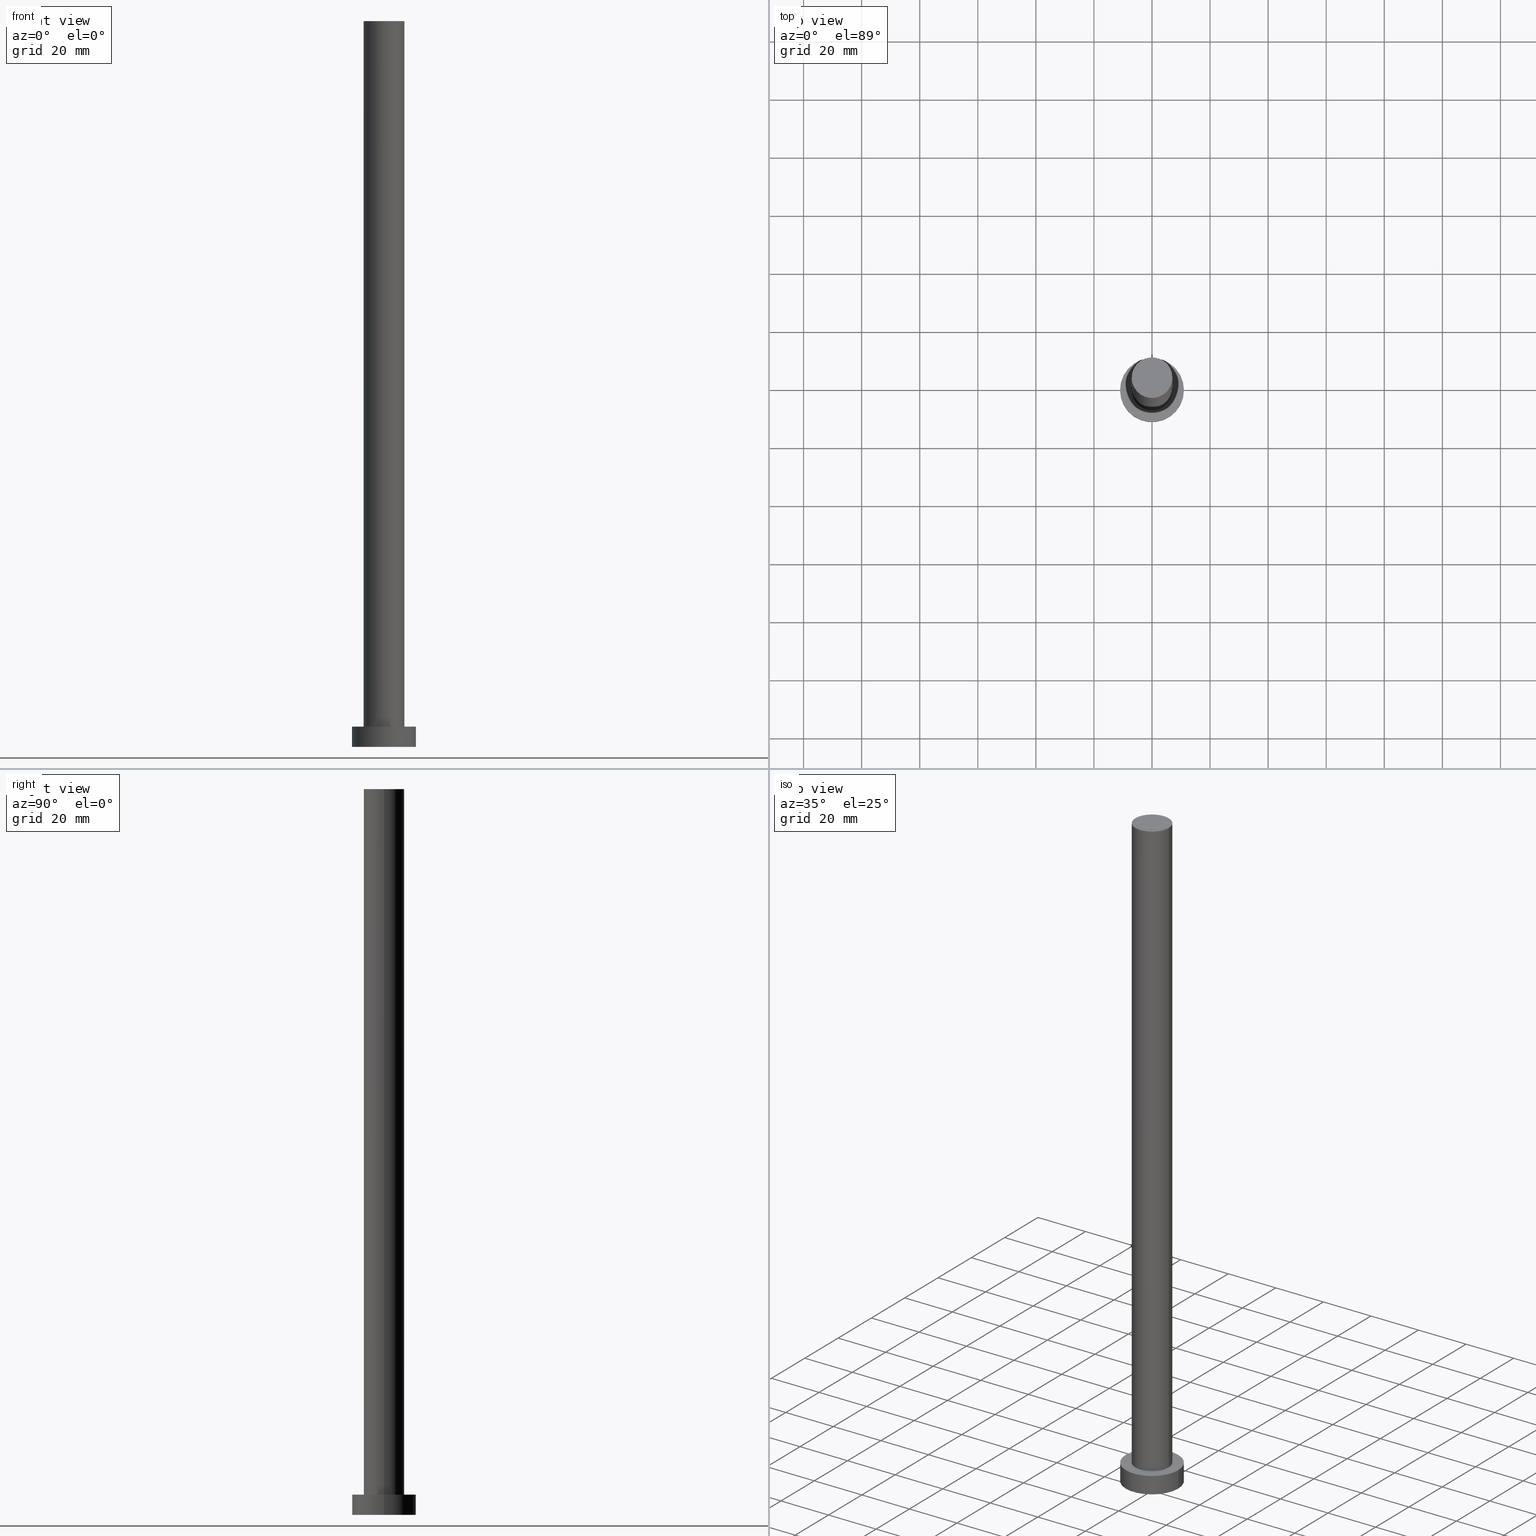
[diagram: canonical four-view strip — front | top / right | iso, engineering-drawing reading convention]
A machine part, canonical four-view strip (front | top / right | iso — engineering-drawing reading convention). The complete STEP part file that produces these views, byte-faithful:
ISO-10303-21;
HEADER;
FILE_DESCRIPTION (( 'STEP AP203' ),
    '1' );
FILE_NAME ('c078.STEP',
    '2023-02-13T08:55:01',
    ( '' ),
    ( '' ),
    'SwSTEP 2.0',
    'SolidWorks 2019',
    '' );
FILE_SCHEMA (( 'CONFIG_CONTROL_DESIGN' ));
ENDSEC;

DATA;
#1 = CC_DESIGN_PERSON_AND_ORGANIZATION_ASSIGNMENT ( #22, #135, ( #111 ) ) ;
#2 = PERSON_AND_ORGANIZATION ( #46, #154 ) ;
#3 = CARTESIAN_POINT ( 'NONE',  ( 0.000000000000000000, 0.000000000000000000, 0.000000000000000000 ) ) ;
#4 = PRODUCT_DEFINITION ( 'NEZN�M�', '', #157, #199 ) ;
#5 = CALENDAR_DATE ( 2023, 13, 2 ) ;
#6 = AXIS2_PLACEMENT_3D ( 'NONE', #120, #140, #130 ) ;
#7 = EDGE_CURVE ( 'NONE', #233, #238, #235, .T. ) ;
#8 = CARTESIAN_POINT ( 'NONE',  ( -7.000000000000000888, 0.000000000000000000, 7.000000000000000000 ) ) ;
#9 = APPLICATION_PROTOCOL_DEFINITION ( 'international standard', 'config_control_design', 1994, #48 ) ;
#10 = DIRECTION ( 'NONE',  ( 1.000000000000000000, 0.000000000000000000, 0.000000000000000000 ) ) ;
#11 = AXIS2_PLACEMENT_3D ( 'NONE', #165, #28, #121 ) ;
#12 = CIRCLE ( 'NONE', #214, 7.000000000000000888 ) ;
#13 = LOCAL_TIME ( 9, 55, 1.000000000000000000, #177 ) ;
#14 = EDGE_CURVE ( 'NONE', #238, #171, #221, .T. ) ;
#15 = DIRECTION ( 'NONE',  ( 0.000000000000000000, 0.000000000000000000, 1.000000000000000000 ) ) ;
#16 = CARTESIAN_POINT ( 'NONE',  ( 7.000000000000000888, 8.572527594031474176E-16, 250.0000000000000000 ) ) ;
#17 = LOCAL_TIME ( 9, 55, 1.000000000000000000, #106 ) ;
#18 = EDGE_LOOP ( 'NONE', ( #105, #32 ) ) ;
#19 = PERSON_AND_ORGANIZATION ( #46, #154 ) ;
#20 = FACE_OUTER_BOUND ( 'NONE', #124, .T. ) ;
#21 = CC_DESIGN_PERSON_AND_ORGANIZATION_ASSIGNMENT ( #2, #41, ( #157 ) ) ;
#22 = PERSON_AND_ORGANIZATION ( #46, #154 ) ;
#23 = AXIS2_PLACEMENT_3D ( 'NONE', #229, #113, #155 ) ;
#24 = FACE_OUTER_BOUND ( 'NONE', #97, .T. ) ;
#25 = EDGE_CURVE ( 'NONE', #233, #169, #250, .T. ) ;
#26 = CIRCLE ( 'NONE', #181, 11.00000000000000000 ) ;
#27 = CARTESIAN_POINT ( 'NONE',  ( 11.00000000000000000, 1.347111479062088405E-15, 0.000000000000000000 ) ) ;
#28 = DIRECTION ( 'NONE',  ( -0.000000000000000000, -0.000000000000000000, -1.000000000000000000 ) ) ;
#29 = VERTEX_POINT ( 'NONE', #150 ) ;
#30 = APPROVAL_ROLE ( '' ) ;
#31 = VERTEX_POINT ( 'NONE', #62 ) ;
#32 = ORIENTED_EDGE ( 'NONE', *, *, #116, .F. ) ;
#33 = ORIENTED_EDGE ( 'NONE', *, *, #220, .T. ) ;
#34 = PERSON_AND_ORGANIZATION ( #46, #154 ) ;
#35 = DIRECTION ( 'NONE',  ( 0.000000000000000000, 0.000000000000000000, 1.000000000000000000 ) ) ;
#36 = COORDINATED_UNIVERSAL_TIME_OFFSET ( 1, 0, .AHEAD. ) ;
#37 = DATE_TIME_ROLE ( 'creation_date' ) ;
#38 = DIRECTION ( 'NONE',  ( -0.000000000000000000, -0.000000000000000000, -1.000000000000000000 ) ) ;
#39 = COORDINATED_UNIVERSAL_TIME_OFFSET ( 1, 0, .AHEAD. ) ;
#40 = CIRCLE ( 'NONE', #57, 7.000000000000000888 ) ;
#41 = PERSON_AND_ORGANIZATION_ROLE ( 'design_supplier' ) ;
#42 = DIRECTION ( 'NONE',  ( 0.000000000000000000, 0.000000000000000000, 1.000000000000000000 ) ) ;
#43 = CC_DESIGN_PERSON_AND_ORGANIZATION_ASSIGNMENT ( #132, #203, ( #157 ) ) ;
#44 = DIRECTION ( 'NONE',  ( -1.000000000000000000, 0.000000000000000000, 0.000000000000000000 ) ) ;
#45 = CC_DESIGN_APPROVAL ( #245, ( #157 ) ) ;
#46 = PERSON ( 'NEUR�EN�', 'NEUR�EN�', 'NEUR�EN�', ('NEUR�EN�'), ('NEUR�EN�'), ('NEUR�EN�') ) ;
#47 =( LENGTH_UNIT ( ) NAMED_UNIT ( * ) SI_UNIT ( .MILLI., .METRE. ) );
#48 = APPLICATION_CONTEXT ( 'configuration controlled 3d designs of mechanical parts and assemblies' ) ;
#49 = AXIS2_PLACEMENT_3D ( 'NONE', #222, #35, #110 ) ;
#50 = PLANE ( 'NONE',  #170 ) ;
#51 = CARTESIAN_POINT ( 'NONE',  ( 0.000000000000000000, 0.000000000000000000, 7.000000000000000000 ) ) ;
#52 = CIRCLE ( 'NONE', #202, 7.000000000000000888 ) ;
#53 = DIRECTION ( 'NONE',  ( 1.000000000000000000, 0.000000000000000000, 0.000000000000000000 ) ) ;
#54 = ORIENTED_EDGE ( 'NONE', *, *, #126, .T. ) ;
#55 =( NAMED_UNIT ( * ) SI_UNIT ( $, .STERADIAN. ) SOLID_ANGLE_UNIT ( ) );
#56 = DIRECTION ( 'NONE',  ( -0.000000000000000000, -0.000000000000000000, -1.000000000000000000 ) ) ;
#57 = AXIS2_PLACEMENT_3D ( 'NONE', #191, #15, #76 ) ;
#58 = ORIENTED_EDGE ( 'NONE', *, *, #119, .F. ) ;
#59 = APPROVAL_PERSON_ORGANIZATION ( #178, #245, #241 ) ;
#60 = VERTEX_POINT ( 'NONE', #27 ) ;
#61 = APPLICATION_PROTOCOL_DEFINITION ( 'international standard', 'config_control_design', 1994, #138 ) ;
#62 = CARTESIAN_POINT ( 'NONE',  ( -11.00000000000000000, 0.000000000000000000, 0.000000000000000000 ) ) ;
#63 = CALENDAR_DATE ( 2023, 13, 2 ) ;
#64 = CARTESIAN_POINT ( 'NONE',  ( 7.000000000000000888, 8.572527594031474176E-16, 7.000000000000000000 ) ) ;
#65 = DIRECTION ( 'NONE',  ( 1.000000000000000000, 0.000000000000000000, 0.000000000000000000 ) ) ;
#66 = CYLINDRICAL_SURFACE ( 'NONE', #72, 7.000000000000000888 ) ;
#67 = DATE_AND_TIME ( #114, #98 ) ;
#68 = SHAPE_DEFINITION_REPRESENTATION ( #185, #237 ) ;
#69 = LINE ( 'NONE', #224, #81 ) ;
#70 = CIRCLE ( 'NONE', #23, 11.00000000000000000 ) ;
#71 = ADVANCED_FACE ( 'NONE', ( #103, #20 ), #131, .T. ) ;
#72 = AXIS2_PLACEMENT_3D ( 'NONE', #210, #182, #87 ) ;
#73 = DIRECTION ( 'NONE',  ( 0.000000000000000000, 0.000000000000000000, 1.000000000000000000 ) ) ;
#74 = CARTESIAN_POINT ( 'NONE',  ( 0.000000000000000000, 0.000000000000000000, 250.0000000000000000 ) ) ;
#75 = PRODUCT_RELATED_PRODUCT_CATEGORY ( 'detail', '', ( #123 ) ) ;
#76 = DIRECTION ( 'NONE',  ( 1.000000000000000000, 0.000000000000000000, 0.000000000000000000 ) ) ;
#77 = ORIENTED_EDGE ( 'NONE', *, *, #133, .F. ) ;
#78 = PERSON_AND_ORGANIZATION ( #46, #154 ) ;
#79 = ORIENTED_EDGE ( 'NONE', *, *, #242, .F. ) ;
#80 = VECTOR ( 'NONE', #83, 1000.000000000000000 ) ;
#81 = VECTOR ( 'NONE', #38, 1000.000000000000000 ) ;
#82 = EDGE_CURVE ( 'NONE', #169, #171, #12, .T. ) ;
#83 = DIRECTION ( 'NONE',  ( -0.000000000000000000, -0.000000000000000000, -1.000000000000000000 ) ) ;
#84 = DIRECTION ( 'NONE',  ( -0.000000000000000000, -0.000000000000000000, -1.000000000000000000 ) ) ;
#85 = APPROVAL_DATE_TIME ( #156, #160 ) ;
#86 = ADVANCED_FACE ( 'NONE', ( #230 ), #125, .T. ) ;
#87 = DIRECTION ( 'NONE',  ( -1.000000000000000000, 0.000000000000000000, 0.000000000000000000 ) ) ;
#88 = AXIS2_PLACEMENT_3D ( 'NONE', #145, #249, #65 ) ;
#89 = DIRECTION ( 'NONE',  ( 1.000000000000000000, 0.000000000000000000, 0.000000000000000000 ) ) ;
#90 = DIRECTION ( 'NONE',  ( 0.000000000000000000, 0.000000000000000000, 1.000000000000000000 ) ) ;
#91 = ADVANCED_FACE ( 'NONE', ( #93 ), #196, .T. ) ;
#92 = ORIENTED_EDGE ( 'NONE', *, *, #25, .T. ) ;
#93 = FACE_OUTER_BOUND ( 'NONE', #248, .T. ) ;
#94 = ORIENTED_EDGE ( 'NONE', *, *, #116, .T. ) ;
#95 = ORIENTED_EDGE ( 'NONE', *, *, #119, .T. ) ;
#96 = CLOSED_SHELL ( 'NONE', ( #86, #227, #91, #71, #179, #184, #99 ) ) ;
#97 = EDGE_LOOP ( 'NONE', ( #218, #58 ) ) ;
#98 = LOCAL_TIME ( 9, 55, 1.000000000000000000, #39 ) ;
#99 = ADVANCED_FACE ( 'NONE', ( #142 ), #50, .T. ) ;
#100 = LOCAL_TIME ( 9, 55, 1.000000000000000000, #217 ) ;
#101 = CC_DESIGN_DATE_AND_TIME_ASSIGNMENT ( #136, #37, ( #4 ) ) ;
#102 = FACE_OUTER_BOUND ( 'NONE', #198, .T. ) ;
#103 = FACE_BOUND ( 'NONE', #18, .T. ) ;
#104 = DIRECTION ( 'NONE',  ( 1.000000000000000000, 0.000000000000000000, -0.000000000000000000 ) ) ;
#105 = ORIENTED_EDGE ( 'NONE', *, *, #82, .F. ) ;
#106 = COORDINATED_UNIVERSAL_TIME_OFFSET ( 1, 0, .AHEAD. ) ;
#107 = ORIENTED_EDGE ( 'NONE', *, *, #141, .T. ) ;
#108 = AXIS2_PLACEMENT_3D ( 'NONE', #223, #115, #206 ) ;
#109 = VERTEX_POINT ( 'NONE', #231 ) ;
#110 = DIRECTION ( 'NONE',  ( 1.000000000000000000, 0.000000000000000000, -0.000000000000000000 ) ) ;
#111 = SECURITY_CLASSIFICATION ( '', '', #243 ) ;
#112 = DIRECTION ( 'NONE',  ( -1.000000000000000000, 0.000000000000000000, 0.000000000000000000 ) ) ;
#113 = DIRECTION ( 'NONE',  ( 0.000000000000000000, 0.000000000000000000, 1.000000000000000000 ) ) ;
#114 = CALENDAR_DATE ( 2023, 13, 2 ) ;
#115 = DIRECTION ( 'NONE',  ( 0.000000000000000000, 0.000000000000000000, 1.000000000000000000 ) ) ;
#116 = EDGE_CURVE ( 'NONE', #171, #169, #40, .T. ) ;
#117 = CALENDAR_DATE ( 2023, 13, 2 ) ;
#118 = APPROVAL_PERSON_ORGANIZATION ( #19, #208, #30 ) ;
#119 = EDGE_CURVE ( 'NONE', #60, #31, #204, .T. ) ;
#120 = CARTESIAN_POINT ( 'NONE',  ( 0.000000000000000000, 0.000000000000000000, 0.000000000000000000 ) ) ;
#121 = DIRECTION ( 'NONE',  ( -1.000000000000000000, 0.000000000000000000, 0.000000000000000000 ) ) ;
#122 = LOCAL_TIME ( 9, 55, 1.000000000000000000, #36 ) ;
#123 = PRODUCT ( 'c078', 'c078', '', ( #144 ) ) ;
#124 = EDGE_LOOP ( 'NONE', ( #33, #107 ) ) ;
#125 = CYLINDRICAL_SURFACE ( 'NONE', #11, 7.000000000000000888 ) ;
#126 = EDGE_CURVE ( 'NONE', #29, #31, #175, .T. ) ;
#127 = PERSON_AND_ORGANIZATION_ROLE ( 'creator' ) ;
#128 = ORIENTED_EDGE ( 'NONE', *, *, #161, .T. ) ;
#129 = ORIENTED_EDGE ( 'NONE', *, *, #126, .F. ) ;
#130 = DIRECTION ( 'NONE',  ( 1.000000000000000000, 0.000000000000000000, 0.000000000000000000 ) ) ;
#131 = PLANE ( 'NONE',  #49 ) ;
#132 = PERSON_AND_ORGANIZATION ( #46, #154 ) ;
#133 = EDGE_CURVE ( 'NONE', #109, #60, #69, .T. ) ;
#134 = PLANE ( 'NONE',  #108 ) ;
#135 = PERSON_AND_ORGANIZATION_ROLE ( 'classification_officer' ) ;
#136 = DATE_AND_TIME ( #63, #100 ) ;
#137 = APPROVAL_STATUS ( 'not_yet_approved' ) ;
#138 = APPLICATION_CONTEXT ( 'configuration controlled 3d designs of mechanical parts and assemblies' ) ;
#139 = APPROVAL_STATUS ( 'not_yet_approved' ) ;
#140 = DIRECTION ( 'NONE',  ( 0.000000000000000000, 0.000000000000000000, 1.000000000000000000 ) ) ;
#141 = EDGE_CURVE ( 'NONE', #109, #29, #70, .T. ) ;
#142 = FACE_OUTER_BOUND ( 'NONE', #143, .T. ) ;
#143 = EDGE_LOOP ( 'NONE', ( #213, #147 ) ) ;
#144 = MECHANICAL_CONTEXT ( 'NONE', #48, 'mechanical' ) ;
#145 = CARTESIAN_POINT ( 'NONE',  ( 0.000000000000000000, 0.000000000000000000, 0.000000000000000000 ) ) ;
#146 = CARTESIAN_POINT ( 'NONE',  ( -7.000000000000000888, 0.000000000000000000, 250.0000000000000000 ) ) ;
#147 = ORIENTED_EDGE ( 'NONE', *, *, #242, .T. ) ;
#148 = ORIENTED_EDGE ( 'NONE', *, *, #133, .T. ) ;
#149 = CC_DESIGN_APPROVAL ( #208, ( #4 ) ) ;
#150 = CARTESIAN_POINT ( 'NONE',  ( -11.00000000000000000, 0.000000000000000000, 7.000000000000000000 ) ) ;
#151 = CC_DESIGN_PERSON_AND_ORGANIZATION_ASSIGNMENT ( #78, #127, ( #4 ) ) ;
#152 = DIRECTION ( 'NONE',  ( 0.000000000000000000, 0.000000000000000000, 1.000000000000000000 ) ) ;
#153 = CARTESIAN_POINT ( 'NONE',  ( 0.000000000000000000, 0.000000000000000000, 7.000000000000000000 ) ) ;
#154 = ORGANIZATION ( 'NEUR�EN�', 'NEUR�EN�', '' ) ;
#155 = DIRECTION ( 'NONE',  ( 1.000000000000000000, 0.000000000000000000, 0.000000000000000000 ) ) ;
#156 = DATE_AND_TIME ( #117, #13 ) ;
#157 = PRODUCT_DEFINITION_FORMATION_WITH_SPECIFIED_SOURCE ( 'LIBOVOLN�', '', #123, .NOT_KNOWN. ) ;
#158 = AXIS2_PLACEMENT_3D ( 'NONE', #188, #166, #44 ) ;
#159 = DIRECTION ( 'NONE',  ( 1.000000000000000000, 0.000000000000000000, 0.000000000000000000 ) ) ;
#160 = APPROVAL ( #137, 'NEUR�EN�' ) ;
#161 = EDGE_CURVE ( 'NONE', #31, #60, #26, .T. ) ;
#162 = CARTESIAN_POINT ( 'NONE',  ( 7.000000000000000888, 8.572527594031474176E-16, 250.0000000000000000 ) ) ;
#163 = CARTESIAN_POINT ( 'NONE',  ( -7.000000000000000888, 0.000000000000000000, 250.0000000000000000 ) ) ;
#164 = EDGE_LOOP ( 'NONE', ( #79, #190, #94, #172 ) ) ;
#165 = CARTESIAN_POINT ( 'NONE',  ( 0.000000000000000000, 0.000000000000000000, 250.0000000000000000 ) ) ;
#166 = DIRECTION ( 'NONE',  ( -0.000000000000000000, -0.000000000000000000, -1.000000000000000000 ) ) ;
#167 = EDGE_LOOP ( 'NONE', ( #252, #216, #92, #194 ) ) ;
#168 = DATE_AND_TIME ( #195, #17 ) ;
#169 = VERTEX_POINT ( 'NONE', #8 ) ;
#170 = AXIS2_PLACEMENT_3D ( 'NONE', #74, #152, #104 ) ;
#171 = VERTEX_POINT ( 'NONE', #64 ) ;
#172 = ORIENTED_EDGE ( 'NONE', *, *, #25, .F. ) ;
#173 = AXIS2_PLACEMENT_3D ( 'NONE', #51, #246, #89 ) ;
#174 = VECTOR ( 'NONE', #56, 1000.000000000000000 ) ;
#175 = LINE ( 'NONE', #244, #186 ) ;
#176 = PERSON_AND_ORGANIZATION ( #46, #154 ) ;
#177 = COORDINATED_UNIVERSAL_TIME_OFFSET ( 1, 0, .AHEAD. ) ;
#178 = PERSON_AND_ORGANIZATION ( #46, #154 ) ;
#179 = ADVANCED_FACE ( 'NONE', ( #24 ), #134, .F. ) ;
#180 = MANIFOLD_SOLID_BREP ( 'P�idat vysunut�m3', #96 ) ;
#181 = AXIS2_PLACEMENT_3D ( 'NONE', #3, #42, #159 ) ;
#182 = DIRECTION ( 'NONE',  ( -0.000000000000000000, -0.000000000000000000, -1.000000000000000000 ) ) ;
#183 = AXIS2_PLACEMENT_3D ( 'NONE', #253, #90, #239 ) ;
#184 = ADVANCED_FACE ( 'NONE', ( #240 ), #66, .T. ) ;
#185 = PRODUCT_DEFINITION_SHAPE ( 'NONE', 'NONE',  #4 ) ;
#186 = VECTOR ( 'NONE', #84, 1000.000000000000000 ) ;
#187 = CARTESIAN_POINT ( 'NONE',  ( 0.000000000000000000, 0.000000000000000000, 7.000000000000000000 ) ) ;
#188 = CARTESIAN_POINT ( 'NONE',  ( 0.000000000000000000, 0.000000000000000000, 7.000000000000000000 ) ) ;
#189 = DIRECTION ( 'NONE',  ( 0.000000000000000000, 0.000000000000000000, 1.000000000000000000 ) ) ;
#190 = ORIENTED_EDGE ( 'NONE', *, *, #14, .T. ) ;
#191 = CARTESIAN_POINT ( 'NONE',  ( 0.000000000000000000, 0.000000000000000000, 7.000000000000000000 ) ) ;
#192 = AXIS2_PLACEMENT_3D ( 'NONE', #187, #255, #112 ) ;
#193 = CYLINDRICAL_SURFACE ( 'NONE', #158, 11.00000000000000000 ) ;
#194 = ORIENTED_EDGE ( 'NONE', *, *, #82, .T. ) ;
#195 = CALENDAR_DATE ( 2023, 13, 2 ) ;
#196 = CYLINDRICAL_SURFACE ( 'NONE', #192, 11.00000000000000000 ) ;
#197 = ORIENTED_EDGE ( 'NONE', *, *, #141, .F. ) ;
#198 = EDGE_LOOP ( 'NONE', ( #197, #148, #95, #129 ) ) ;
#199 = DESIGN_CONTEXT ( 'detailed design', #138, 'design' ) ;
#200 = CIRCLE ( 'NONE', #173, 11.00000000000000000 ) ;
#201 = CC_DESIGN_APPROVAL ( #160, ( #111 ) ) ;
#202 = AXIS2_PLACEMENT_3D ( 'NONE', #212, #189, #10 ) ;
#203 = PERSON_AND_ORGANIZATION_ROLE ( 'creator' ) ;
#204 = CIRCLE ( 'NONE', #88, 11.00000000000000000 ) ;
#205 = DATE_TIME_ROLE ( 'classification_date' ) ;
#206 = DIRECTION ( 'NONE',  ( 1.000000000000000000, 0.000000000000000000, -0.000000000000000000 ) ) ;
#207 = DATE_AND_TIME ( #5, #122 ) ;
#208 = APPROVAL ( #215, 'NEUR�EN�' ) ;
#209 = UNCERTAINTY_MEASURE_WITH_UNIT (LENGTH_MEASURE( 1.000000000000000082E-05 ), #47, 'distance_accuracy_value', 'NONE');
#210 = CARTESIAN_POINT ( 'NONE',  ( 0.000000000000000000, 0.000000000000000000, 250.0000000000000000 ) ) ;
#211 =( NAMED_UNIT ( * ) PLANE_ANGLE_UNIT ( ) SI_UNIT ( $, .RADIAN. ) );
#212 = CARTESIAN_POINT ( 'NONE',  ( 0.000000000000000000, 0.000000000000000000, 250.0000000000000000 ) ) ;
#213 = ORIENTED_EDGE ( 'NONE', *, *, #7, .T. ) ;
#214 = AXIS2_PLACEMENT_3D ( 'NONE', #153, #73, #53 ) ;
#215 = APPROVAL_STATUS ( 'not_yet_approved' ) ;
#216 = ORIENTED_EDGE ( 'NONE', *, *, #7, .F. ) ;
#217 = COORDINATED_UNIVERSAL_TIME_OFFSET ( 1, 0, .AHEAD. ) ;
#218 = ORIENTED_EDGE ( 'NONE', *, *, #161, .F. ) ;
#219 =( GEOMETRIC_REPRESENTATION_CONTEXT ( 3 ) GLOBAL_UNCERTAINTY_ASSIGNED_CONTEXT ( ( #209 ) ) GLOBAL_UNIT_ASSIGNED_CONTEXT ( ( #47, #211, #55 ) ) REPRESENTATION_CONTEXT ( 'NONE', 'WORKASPACE' ) );
#220 = EDGE_CURVE ( 'NONE', #29, #109, #200, .T. ) ;
#221 = LINE ( 'NONE', #16, #80 ) ;
#222 = CARTESIAN_POINT ( 'NONE',  ( 0.000000000000000000, 0.000000000000000000, 7.000000000000000000 ) ) ;
#223 = CARTESIAN_POINT ( 'NONE',  ( 0.000000000000000000, 0.000000000000000000, 0.000000000000000000 ) ) ;
#224 = CARTESIAN_POINT ( 'NONE',  ( 11.00000000000000000, 1.347111479062088405E-15, 7.000000000000000000 ) ) ;
#225 = APPROVAL_ROLE ( '' ) ;
#226 = CC_DESIGN_SECURITY_CLASSIFICATION ( #111, ( #157 ) ) ;
#227 = ADVANCED_FACE ( 'NONE', ( #102 ), #193, .T. ) ;
#228 = APPROVAL_DATE_TIME ( #67, #245 ) ;
#229 = CARTESIAN_POINT ( 'NONE',  ( 0.000000000000000000, 0.000000000000000000, 7.000000000000000000 ) ) ;
#230 = FACE_OUTER_BOUND ( 'NONE', #164, .T. ) ;
#231 = CARTESIAN_POINT ( 'NONE',  ( 11.00000000000000000, 1.347111479062088405E-15, 7.000000000000000000 ) ) ;
#232 = APPROVAL_PERSON_ORGANIZATION ( #176, #160, #225 ) ;
#233 = VERTEX_POINT ( 'NONE', #163 ) ;
#234 = PERSON_AND_ORGANIZATION_ROLE ( 'design_owner' ) ;
#235 = CIRCLE ( 'NONE', #183, 7.000000000000000888 ) ;
#236 = CC_DESIGN_DATE_AND_TIME_ASSIGNMENT ( #207, #205, ( #111 ) ) ;
#237 = ADVANCED_BREP_SHAPE_REPRESENTATION ( 'c078', ( #180, #6 ), #219 ) ;
#238 = VERTEX_POINT ( 'NONE', #162 ) ;
#239 = DIRECTION ( 'NONE',  ( 1.000000000000000000, 0.000000000000000000, 0.000000000000000000 ) ) ;
#240 = FACE_OUTER_BOUND ( 'NONE', #167, .T. ) ;
#241 = APPROVAL_ROLE ( '' ) ;
#242 = EDGE_CURVE ( 'NONE', #238, #233, #52, .T. ) ;
#243 = SECURITY_CLASSIFICATION_LEVEL ( 'unclassified' ) ;
#244 = CARTESIAN_POINT ( 'NONE',  ( -11.00000000000000000, 0.000000000000000000, 7.000000000000000000 ) ) ;
#245 = APPROVAL ( #139, 'NEUR�EN�' ) ;
#246 = DIRECTION ( 'NONE',  ( 0.000000000000000000, 0.000000000000000000, 1.000000000000000000 ) ) ;
#247 = CC_DESIGN_PERSON_AND_ORGANIZATION_ASSIGNMENT ( #34, #234, ( #123 ) ) ;
#248 = EDGE_LOOP ( 'NONE', ( #77, #254, #54, #128 ) ) ;
#249 = DIRECTION ( 'NONE',  ( 0.000000000000000000, 0.000000000000000000, 1.000000000000000000 ) ) ;
#250 = LINE ( 'NONE', #146, #174 ) ;
#251 = APPROVAL_DATE_TIME ( #168, #208 ) ;
#252 = ORIENTED_EDGE ( 'NONE', *, *, #14, .F. ) ;
#253 = CARTESIAN_POINT ( 'NONE',  ( 0.000000000000000000, 0.000000000000000000, 250.0000000000000000 ) ) ;
#254 = ORIENTED_EDGE ( 'NONE', *, *, #220, .F. ) ;
#255 = DIRECTION ( 'NONE',  ( -0.000000000000000000, -0.000000000000000000, -1.000000000000000000 ) ) ;
ENDSEC;
END-ISO-10303-21;
